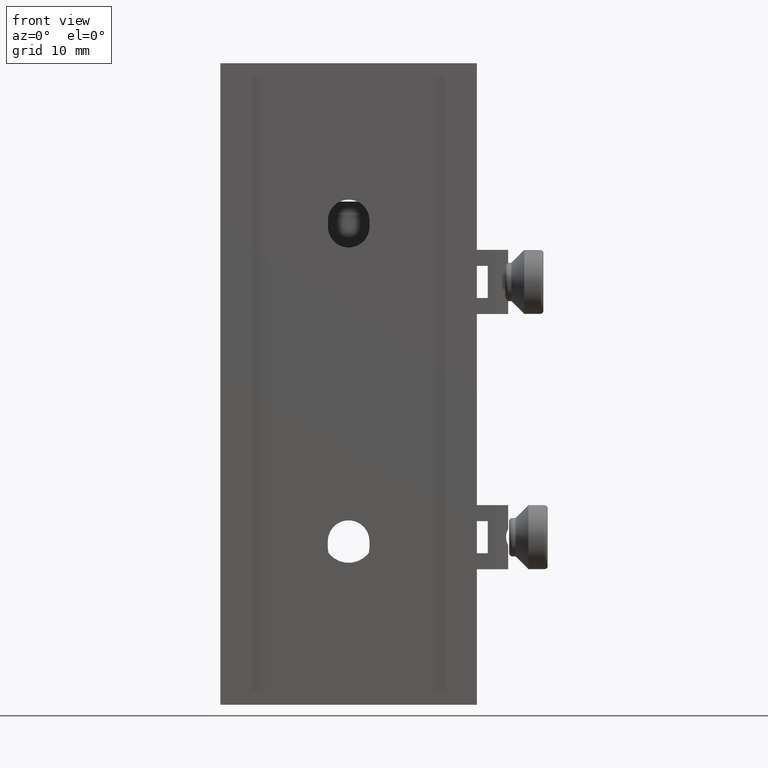
[diagram: clean part render]
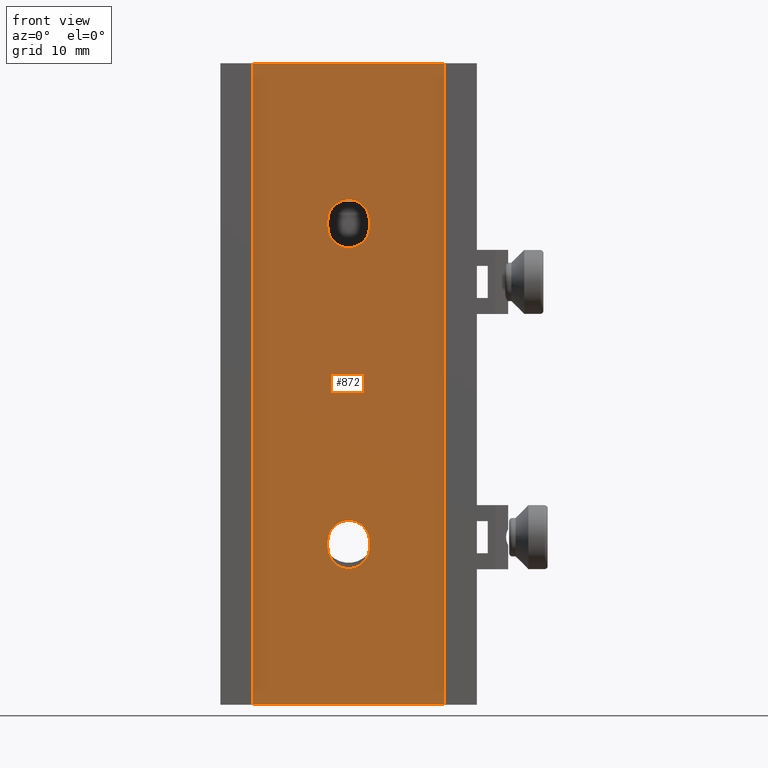
[diagram: same view with one face highlighted and labeled with its STEP entity id]
A machine part, front view. The second image highlights one B-rep face of the part: STEP entity #872.
In plain terms, the highlighted planar face has unit normal (0, -1, 0).
Its self-contained STEP definition (entity closure, byte-faithful):
#8 = LINE ( 'NONE', #3264, #869 ) ;
#110 = DIRECTION ( 'NONE',  ( 0.000000000000000000, -1.000000000000000000, 0.000000000000000000 ) ) ;
#115 = VERTEX_POINT ( 'NONE', #3546 ) ;
#138 = DIRECTION ( 'NONE',  ( -1.836970198721026483E-16, -0.000000000000000000, -1.000000000000000000 ) ) ;
#197 = DIRECTION ( 'NONE',  ( 1.000000000000000000, 0.000000000000000000, 0.000000000000000000 ) ) ;
#205 = DIRECTION ( 'NONE',  ( -1.836970198721026483E-16, -0.000000000000000000, -1.000000000000000000 ) ) ;
#253 = DIRECTION ( 'NONE',  ( -1.236303256585107026E-16, 0.000000000000000000, 1.000000000000000000 ) ) ;
#259 = EDGE_CURVE ( 'NONE', #3944, #4673, #4435, .T. ) ;
#266 = DIRECTION ( 'NONE',  ( 0.000000000000000000, -1.000000000000000000, 0.000000000000000000 ) ) ;
#297 = CIRCLE ( 'NONE', #2021, 3.249999999999997780 ) ;
#355 = FACE_BOUND ( 'NONE', #3921, .T. ) ;
#361 = DIRECTION ( 'NONE',  ( 1.000000000000000000, 0.000000000000000000, 0.000000000000000000 ) ) ;
#478 = DIRECTION ( 'NONE',  ( 1.000000000000000000, 0.000000000000000000, 0.000000000000000000 ) ) ;
#629 = AXIS2_PLACEMENT_3D ( 'NONE', #5183, #2086, #361 ) ;
#640 = EDGE_CURVE ( 'NONE', #2632, #1058, #4572, .T. ) ;
#655 = ORIENTED_EDGE ( 'NONE', *, *, #1088, .T. ) ;
#661 = CARTESIAN_POINT ( 'NONE',  ( -15.00000000000003730, -5.999999999999996447, 294.6622748219313621 ) ) ;
#724 = DIRECTION ( 'NONE',  ( -1.836970198721026483E-16, -0.000000000000000000, -1.000000000000000000 ) ) ;
#762 = CIRCLE ( 'NONE', #1898, 3.249999999999997780 ) ;
#788 = CARTESIAN_POINT ( 'NONE',  ( -3.249999999999997780, -5.999999999999996447, 25.50000000000000355 ) ) ;
#793 = DIRECTION ( 'NONE',  ( 1.000000000000000000, 0.000000000000000000, 0.000000000000000000 ) ) ;
#803 = FACE_BOUND ( 'NONE', #867, .T. ) ;
#811 = DIRECTION ( 'NONE',  ( 1.000000000000000000, 0.000000000000000000, 0.000000000000000000 ) ) ;
#867 = EDGE_LOOP ( 'NONE', ( #3135, #2286, #1632, #4293 ) ) ;
#869 = VECTOR ( 'NONE', #811, 1000.000000000000000 ) ;
#872 = ADVANCED_FACE ( 'NONE', ( #355, #803, #4868 ), #2025, .T. ) ;
#936 = EDGE_LOOP ( 'NONE', ( #655, #4037, #4211, #3445 ) ) ;
#953 = VECTOR ( 'NONE', #724, 1000.000000000000000 ) ;
#959 = VERTEX_POINT ( 'NONE', #2212 ) ;
#965 = VERTEX_POINT ( 'NONE', #2153 ) ;
#1058 = VERTEX_POINT ( 'NONE', #1482 ) ;
#1085 = EDGE_CURVE ( 'NONE', #4804, #5294, #762, .T. ) ;
#1088 = EDGE_CURVE ( 'NONE', #3310, #5033, #3167, .T. ) ;
#1172 = CARTESIAN_POINT ( 'NONE',  ( -9.184850993605141042E-17, -5.999999999999996447, 24.50000000000000000 ) ) ;
#1482 = CARTESIAN_POINT ( 'NONE',  ( 3.249999999999996891, -5.999999999999996447, -25.50000000000000355 ) ) ;
#1516 = VECTOR ( 'NONE', #138, 1000.000000000000000 ) ;
#1632 = ORIENTED_EDGE ( 'NONE', *, *, #259, .F. ) ;
#1691 = CARTESIAN_POINT ( 'NONE',  ( -3.249999999999997780, -5.999999999999996447, -25.50000000000000355 ) ) ;
#1699 = VECTOR ( 'NONE', #793, 1000.000000000000000 ) ;
#1761 = EDGE_CURVE ( 'NONE', #4804, #4673, #2163, .T. ) ;
#1771 = CARTESIAN_POINT ( 'NONE',  ( -3.250000000000002220, -5.999999999999996447, 5.970153145843339459E-16 ) ) ;
#1844 = EDGE_CURVE ( 'NONE', #5294, #3944, #3375, .T. ) ;
#1898 = AXIS2_PLACEMENT_3D ( 'NONE', #4396, #266, #2720 ) ;
#1988 = VECTOR ( 'NONE', #253, 1000.000000000000000 ) ;
#2021 = AXIS2_PLACEMENT_3D ( 'NONE', #5081, #110, #197 ) ;
#2025 = PLANE ( 'NONE',  #3739 ) ;
#2086 = DIRECTION ( 'NONE',  ( 0.000000000000000000, -1.000000000000000000, 0.000000000000000000 ) ) ;
#2153 = CARTESIAN_POINT ( 'NONE',  ( -3.249999999999997780, -5.999999999999996447, -24.50000000000000000 ) ) ;
#2163 = LINE ( 'NONE', #4657, #1516 ) ;
#2212 = CARTESIAN_POINT ( 'NONE',  ( 15.00000000000000533, -5.999999999999996447, -49.99999999999998579 ) ) ;
#2271 = ORIENTED_EDGE ( 'NONE', *, *, #640, .F. ) ;
#2286 = ORIENTED_EDGE ( 'NONE', *, *, #1761, .T. ) ;
#2303 = LINE ( 'NONE', #3935, #1988 ) ;
#2325 = EDGE_CURVE ( 'NONE', #115, #1058, #4979, .T. ) ;
#2355 = DIRECTION ( 'NONE',  ( 1.000000000000000000, 0.000000000000000000, 0.000000000000000000 ) ) ;
#2365 = DIRECTION ( 'NONE',  ( 1.236303256585107026E-16, 0.000000000000000000, -1.000000000000000000 ) ) ;
#2455 = CARTESIAN_POINT ( 'NONE',  ( -3.249999999999997780, -5.999999999999996447, 24.50000000000000000 ) ) ;
#2594 = VECTOR ( 'NONE', #205, 1000.000000000000000 ) ;
#2632 = VERTEX_POINT ( 'NONE', #1691 ) ;
#2720 = DIRECTION ( 'NONE',  ( 1.000000000000000000, 0.000000000000000000, 0.000000000000000000 ) ) ;
#2731 = CARTESIAN_POINT ( 'NONE',  ( 14.99999999999999112, -5.999999999999996447, 49.99999999999998579 ) ) ;
#2883 = DIRECTION ( 'NONE',  ( 0.000000000000000000, -1.000000000000000000, 0.000000000000000000 ) ) ;
#2926 = ORIENTED_EDGE ( 'NONE', *, *, #2961, .F. ) ;
#2961 = EDGE_CURVE ( 'NONE', #115, #965, #297, .T. ) ;
#3096 = VECTOR ( 'NONE', #2365, 1000.000000000000000 ) ;
#3135 = ORIENTED_EDGE ( 'NONE', *, *, #1085, .F. ) ;
#3167 = LINE ( 'NONE', #661, #3096 ) ;
#3264 = CARTESIAN_POINT ( 'NONE',  ( -2.407148620655123076E-16, -5.999999999999998224, -50.00000000000000000 ) ) ;
#3310 = VERTEX_POINT ( 'NONE', #4051 ) ;
#3372 = EDGE_CURVE ( 'NONE', #3310, #3650, #4451, .T. ) ;
#3375 = LINE ( 'NONE', #1771, #3416 ) ;
#3416 = VECTOR ( 'NONE', #4501, 1000.000000000000000 ) ;
#3445 = ORIENTED_EDGE ( 'NONE', *, *, #3372, .F. ) ;
#3546 = CARTESIAN_POINT ( 'NONE',  ( 3.249999999999997780, -5.999999999999996447, -24.50000000000000000 ) ) ;
#3590 = ORIENTED_EDGE ( 'NONE', *, *, #3816, .F. ) ;
#3650 = VERTEX_POINT ( 'NONE', #2731 ) ;
#3651 = CARTESIAN_POINT ( 'NONE',  ( 0.000000000000000000, -5.999999999999996447, 0.000000000000000000 ) ) ;
#3739 = AXIS2_PLACEMENT_3D ( 'NONE', #3651, #2883, #2355 ) ;
#3816 = EDGE_CURVE ( 'NONE', #965, #2632, #4432, .T. ) ;
#3885 = CARTESIAN_POINT ( 'NONE',  ( 3.249999999999996891, -5.999999999999996447, 25.50000000000000355 ) ) ;
#3921 = EDGE_LOOP ( 'NONE', ( #2271, #3590, #2926, #4830 ) ) ;
#3935 = CARTESIAN_POINT ( 'NONE',  ( 14.99999999999996092, -5.999999999999996447, 294.6622748219313621 ) ) ;
#3944 = VERTEX_POINT ( 'NONE', #2455 ) ;
#4037 = ORIENTED_EDGE ( 'NONE', *, *, #5251, .T. ) ;
#4051 = CARTESIAN_POINT ( 'NONE',  ( -15.00000000000000888, -5.999999999999996447, 49.99999999999998579 ) ) ;
#4211 = ORIENTED_EDGE ( 'NONE', *, *, #4833, .T. ) ;
#4293 = ORIENTED_EDGE ( 'NONE', *, *, #1844, .F. ) ;
#4396 = CARTESIAN_POINT ( 'NONE',  ( 9.184850993605141042E-17, -5.999999999999996447, 25.50000000000000355 ) ) ;
#4432 = LINE ( 'NONE', #4797, #953 ) ;
#4435 = CIRCLE ( 'NONE', #4870, 3.249999999999997780 ) ;
#4451 = LINE ( 'NONE', #4504, #1699 ) ;
#4501 = DIRECTION ( 'NONE',  ( -1.836970198721026483E-16, -0.000000000000000000, -1.000000000000000000 ) ) ;
#4504 = CARTESIAN_POINT ( 'NONE',  ( -2.407148620655123076E-16, -5.999999999999998224, 50.00000000000000000 ) ) ;
#4572 = CIRCLE ( 'NONE', #629, 3.249999999999997780 ) ;
#4577 = CARTESIAN_POINT ( 'NONE',  ( 3.250000000000001776, -5.999999999999996447, -5.970153145843339459E-16 ) ) ;
#4632 = CARTESIAN_POINT ( 'NONE',  ( 3.249999999999996891, -5.999999999999996447, 24.50000000000000000 ) ) ;
#4657 = CARTESIAN_POINT ( 'NONE',  ( 3.249999999999992450, -5.999999999999996447, -5.970153145843321709E-16 ) ) ;
#4673 = VERTEX_POINT ( 'NONE', #4632 ) ;
#4797 = CARTESIAN_POINT ( 'NONE',  ( -3.249999999999992895, -5.999999999999996447, 5.970153145843322695E-16 ) ) ;
#4804 = VERTEX_POINT ( 'NONE', #3885 ) ;
#4830 = ORIENTED_EDGE ( 'NONE', *, *, #2325, .T. ) ;
#4833 = EDGE_CURVE ( 'NONE', #959, #3650, #2303, .T. ) ;
#4868 = FACE_OUTER_BOUND ( 'NONE', #936, .T. ) ;
#4870 = AXIS2_PLACEMENT_3D ( 'NONE', #1172, #5314, #478 ) ;
#4979 = LINE ( 'NONE', #4577, #2594 ) ;
#5023 = CARTESIAN_POINT ( 'NONE',  ( -15.00000000000003730, -5.999999999999998224, -50.00000000000000000 ) ) ;
#5033 = VERTEX_POINT ( 'NONE', #5023 ) ;
#5081 = CARTESIAN_POINT ( 'NONE',  ( 9.184850993605141042E-17, -5.999999999999996447, -24.50000000000000000 ) ) ;
#5183 = CARTESIAN_POINT ( 'NONE',  ( -9.184850993605141042E-17, -5.999999999999996447, -25.50000000000000355 ) ) ;
#5251 = EDGE_CURVE ( 'NONE', #5033, #959, #8, .T. ) ;
#5294 = VERTEX_POINT ( 'NONE', #788 ) ;
#5314 = DIRECTION ( 'NONE',  ( 0.000000000000000000, -1.000000000000000000, 0.000000000000000000 ) ) ;